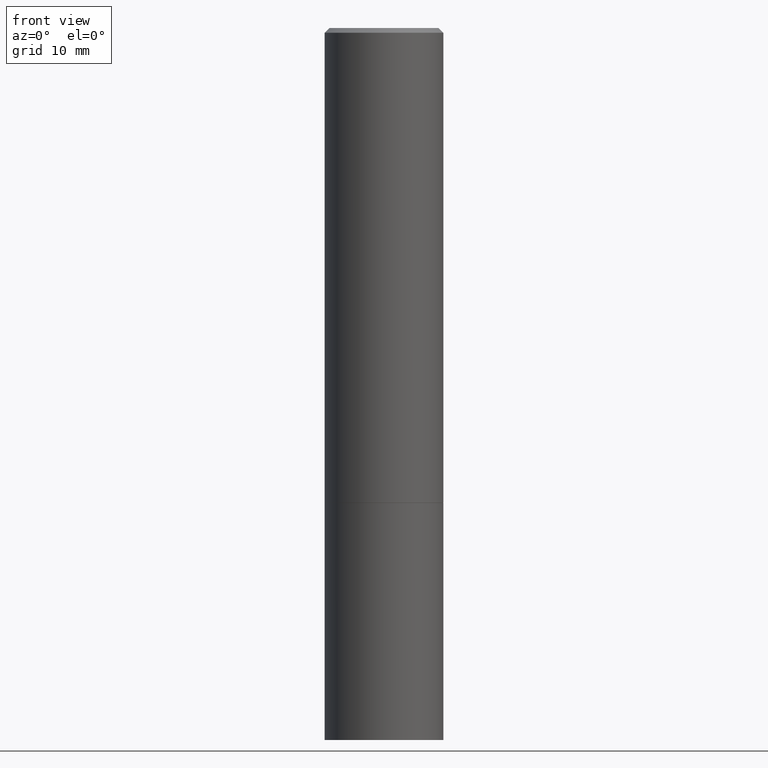
[diagram: clean part render]
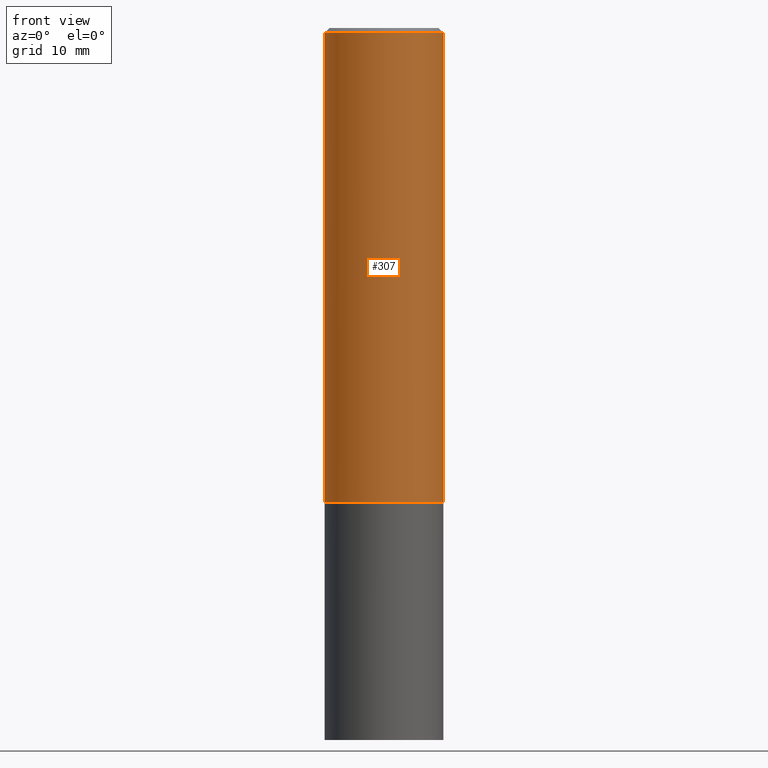
[diagram: same view with one face highlighted and labeled with its STEP entity id]
A machine part, front view. The second image highlights one B-rep face of the part: STEP entity #307.
In plain terms, the highlighted cylindrical surface (partial cylindrical patch) has radius 6.35 mm, axis along (-0, 0, 1).
Its self-contained STEP definition (entity closure, byte-faithful):
#14 = CYLINDRICAL_SURFACE ( 'NONE', #127, 0.2499999999999998335 ) ;
#37 = EDGE_CURVE ( 'NONE', #144, #54, #113, .T. ) ;
#43 = EDGE_CURVE ( 'NONE', #166, #138, #126, .T. ) ;
#54 = VERTEX_POINT ( 'NONE', #116 ) ;
#57 = DIRECTION ( 'NONE',  ( -2.445468806185136597E-29, 3.491481338843145583E-15, 1.000000000000000000 ) ) ;
#61 = DIRECTION ( 'NONE',  ( -2.445468806185136597E-29, 3.491481338843145583E-15, 1.000000000000000000 ) ) ;
#66 = CARTESIAN_POINT ( 'NONE',  ( 0.000000000000000000, 0.000000000000000000, 0.000000000000000000 ) ) ;
#84 = ORIENTED_EDGE ( 'NONE', *, *, #37, .F. ) ;
#91 = VECTOR ( 'NONE', #337, 39.37007874015748143 ) ;
#103 = CARTESIAN_POINT ( 'NONE',  ( -0.2499999999999998335, 1.776356839400249281E-15, -1.229733772563725605E-29 ) ) ;
#113 = CIRCLE ( 'NONE', #292, 0.2499999999999996669 ) ;
#116 = CARTESIAN_POINT ( 'NONE',  ( 0.2499999999999996669, -1.784954126219743428E-15, -0.02000000000000003511 ) ) ;
#118 = CARTESIAN_POINT ( 'NONE',  ( 4.890937612370281041E-31, -6.982962677686302702E-17, -0.02000000000000003511 ) ) ;
#126 = CIRCLE ( 'NONE', #194, 0.2500000000000000000 ) ;
#127 = AXIS2_PLACEMENT_3D ( 'NONE', #66, #183, #356 ) ;
#129 = CARTESIAN_POINT ( 'NONE',  ( -0.2500000000000000000, -1.748293572161902502E-15, -1.999000000000000110 ) ) ;
#131 = DIRECTION ( 'NONE',  ( -2.445468806185136877E-29, 3.491481338843145188E-15, 1.000000000000000000 ) ) ;
#138 = VERTEX_POINT ( 'NONE', #331 ) ;
#144 = VERTEX_POINT ( 'NONE', #360 ) ;
#152 = CARTESIAN_POINT ( 'NONE',  ( 4.888492143564088712E-29, -6.979471196347448158E-15, -1.999000000000000110 ) ) ;
#166 = VERTEX_POINT ( 'NONE', #129 ) ;
#177 = DIRECTION ( 'NONE',  ( 1.000000000000000000, -6.982962677686266711E-15, 0.000000000000000000 ) ) ;
#183 = DIRECTION ( 'NONE',  ( -2.445468806185136597E-29, 3.491481338843145583E-15, 1.000000000000000000 ) ) ;
#190 = EDGE_CURVE ( 'NONE', #166, #144, #328, .T. ) ;
#193 = EDGE_LOOP ( 'NONE', ( #223, #203, #312, #84 ) ) ;
#194 = AXIS2_PLACEMENT_3D ( 'NONE', #152, #57, #177 ) ;
#197 = VECTOR ( 'NONE', #131, 39.37007874015748143 ) ;
#203 = ORIENTED_EDGE ( 'NONE', *, *, #43, .T. ) ;
#220 = CARTESIAN_POINT ( 'NONE',  ( 0.2499999999999998335, -1.745740669421565494E-15, 1.219044193948983107E-29 ) ) ;
#223 = ORIENTED_EDGE ( 'NONE', *, *, #190, .F. ) ;
#248 = EDGE_CURVE ( 'NONE', #138, #54, #306, .T. ) ;
#292 = AXIS2_PLACEMENT_3D ( 'NONE', #118, #61, #317 ) ;
#306 = LINE ( 'NONE', #220, #91 ) ;
#307 = ADVANCED_FACE ( 'NONE', ( #324 ), #14, .T. ) ;
#312 = ORIENTED_EDGE ( 'NONE', *, *, #248, .T. ) ;
#317 = DIRECTION ( 'NONE',  ( 1.000000000000000000, -6.982962677686266711E-15, 0.000000000000000000 ) ) ;
#324 = FACE_OUTER_BOUND ( 'NONE', #193, .T. ) ;
#328 = LINE ( 'NONE', #103, #197 ) ;
#331 = CARTESIAN_POINT ( 'NONE',  ( 0.2500000000000000000, -8.725211865769015625E-15, -1.999000000000000110 ) ) ;
#337 = DIRECTION ( 'NONE',  ( -2.445468806185136877E-29, 3.491481338843145188E-15, 1.000000000000000000 ) ) ;
#356 = DIRECTION ( 'NONE',  ( 1.000000000000000000, -6.982962677686266711E-15, 4.876176775795935793E-29 ) ) ;
#360 = CARTESIAN_POINT ( 'NONE',  ( -0.2499999999999996669, 1.675911042644701210E-15, -0.02000000000000003511 ) ) ;